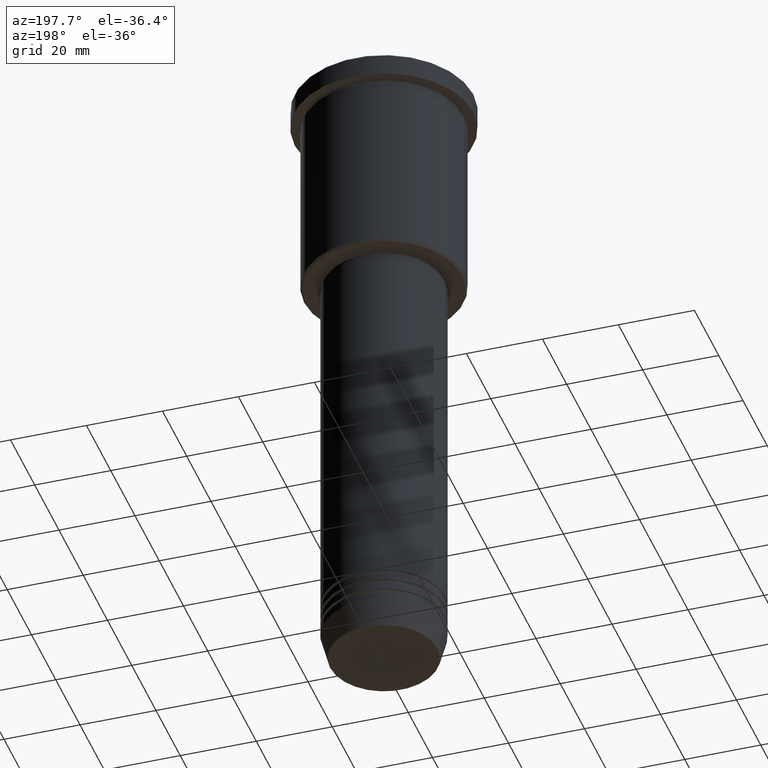
[diagram: clean part render]
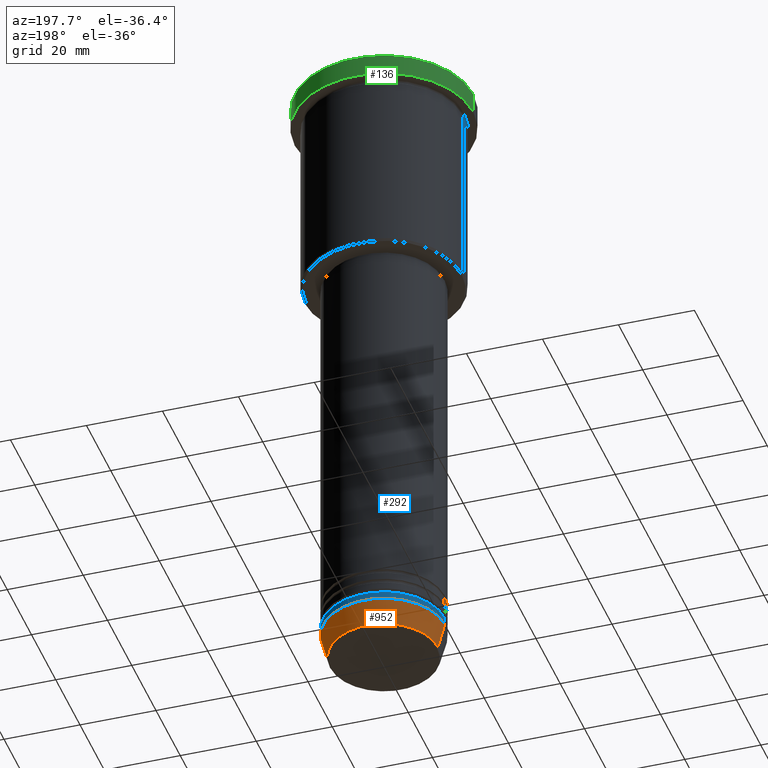
[diagram: same view with three faces highlighted in distinct colors, each labeled with its STEP entity id]
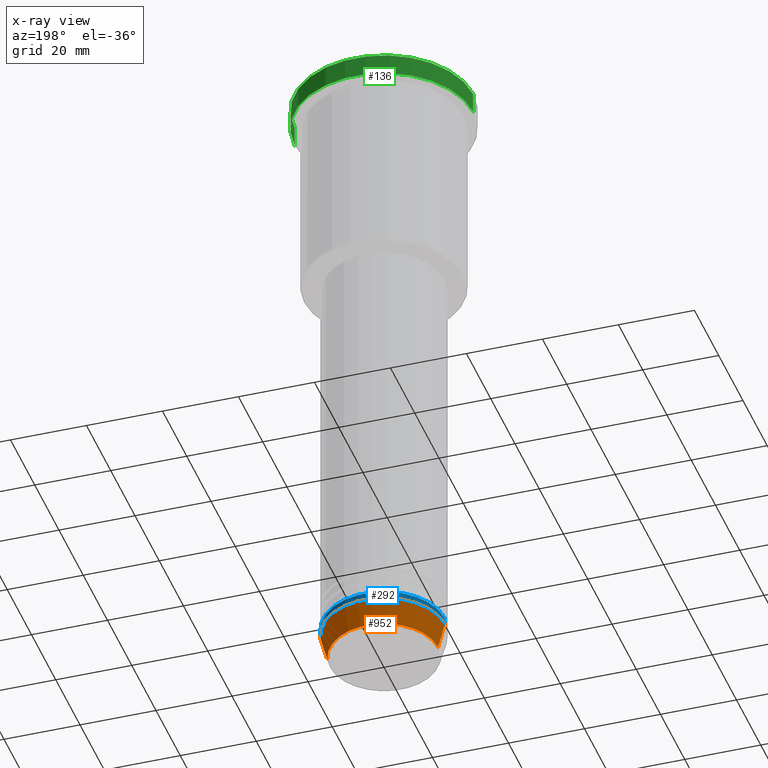
[diagram: x-ray of the same camera — body ghosted, the three highlighted faces saturated]
A machine part, auxiliary view with three faces highlighted in distinct colors.
The next image is the same camera in x-ray (body ghosted, the three faces saturated) — at least one of them is partly hidden behind the body in this view.
Their STEP definitions:

[orange] entity #952 — the highlighted conical surface has half-angle 15 deg.
#28 = CARTESIAN_POINT ( 'NONE',  ( 0.000000000000000000, 0.000000000000000000, -164.0000000000000000 ) ) ;
#51 = EDGE_CURVE ( 'NONE', #903, #446, #917, .T. ) ;
#67 = AXIS2_PLACEMENT_3D ( 'NONE', #28, #812, #179 ) ;
#134 = EDGE_CURVE ( 'NONE', #903, #942, #650, .T. ) ;
#179 = DIRECTION ( 'NONE',  ( 1.000000000000000000, 0.000000000000000000, 0.000000000000000000 ) ) ;
#195 = AXIS2_PLACEMENT_3D ( 'NONE', #768, #318, #232 ) ;
#213 = CARTESIAN_POINT ( 'NONE',  ( 14.22365507213719660, 0.000000000000000000, -170.6294095225512706 ) ) ;
#221 = VERTEX_POINT ( 'NONE', #927 ) ;
#232 = DIRECTION ( 'NONE',  ( 1.000000000000000000, 0.000000000000000000, 0.000000000000000000 ) ) ;
#235 = EDGE_LOOP ( 'NONE', ( #560, #390, #320, #322 ) ) ;
#318 = DIRECTION ( 'NONE',  ( -0.000000000000000000, -0.000000000000000000, 1.000000000000000000 ) ) ;
#320 = ORIENTED_EDGE ( 'NONE', *, *, #1176, .F. ) ;
#322 = ORIENTED_EDGE ( 'NONE', *, *, #51, .F. ) ;
#343 = DIRECTION ( 'NONE',  ( -0.2588190451025213501, 3.169619151431772337E-17, 0.9659258262890680902 ) ) ;
#389 = DIRECTION ( 'NONE',  ( -0.000000000000000000, -0.000000000000000000, 1.000000000000000000 ) ) ;
#390 = ORIENTED_EDGE ( 'NONE', *, *, #691, .T. ) ;
#446 = VERTEX_POINT ( 'NONE', #845 ) ;
#489 = CARTESIAN_POINT ( 'NONE',  ( 0.000000000000000000, 0.000000000000000000, -170.6294095225512706 ) ) ;
#515 = LINE ( 'NONE', #790, #818 ) ;
#560 = ORIENTED_EDGE ( 'NONE', *, *, #134, .T. ) ;
#567 = FACE_OUTER_BOUND ( 'NONE', #235, .T. ) ;
#574 = CIRCLE ( 'NONE', #67, 16.00000000000000000 ) ;
#650 = CIRCLE ( 'NONE', #671, 14.22365507213719660 ) ;
#671 = AXIS2_PLACEMENT_3D ( 'NONE', #489, #389, #745 ) ;
#691 = EDGE_CURVE ( 'NONE', #942, #221, #515, .T. ) ;
#745 = DIRECTION ( 'NONE',  ( 1.000000000000000000, 0.000000000000000000, 0.000000000000000000 ) ) ;
#768 = CARTESIAN_POINT ( 'NONE',  ( 0.000000000000000000, 0.000000000000000000, -164.0000000000000000 ) ) ;
#787 = CONICAL_SURFACE ( 'NONE', #195, 16.00000000000000000, 0.2617993877991500740 ) ;
#790 = CARTESIAN_POINT ( 'NONE',  ( -16.00000000000000000, 1.959434878635765131E-15, -164.0000000000000000 ) ) ;
#812 = DIRECTION ( 'NONE',  ( -0.000000000000000000, -0.000000000000000000, 1.000000000000000000 ) ) ;
#818 = VECTOR ( 'NONE', #343, 1000.000000000000000 ) ;
#845 = CARTESIAN_POINT ( 'NONE',  ( 16.00000000000000000, 0.000000000000000000, -164.0000000000000000 ) ) ;
#903 = VERTEX_POINT ( 'NONE', #213 ) ;
#917 = LINE ( 'NONE', #1003, #1011 ) ;
#924 = DIRECTION ( 'NONE',  ( 0.2588190451025213501, 0.000000000000000000, 0.9659258262890680902 ) ) ;
#927 = CARTESIAN_POINT ( 'NONE',  ( -16.00000000000000000, 1.959434878635765131E-15, -164.0000000000000000 ) ) ;
#942 = VERTEX_POINT ( 'NONE', #951 ) ;
#951 = CARTESIAN_POINT ( 'NONE',  ( -14.22365507213719660, 1.850665122131324126E-15, -170.6294095225512706 ) ) ;
#952 = ADVANCED_FACE ( 'NONE', ( #567 ), #787, .T. ) ;
#1003 = CARTESIAN_POINT ( 'NONE',  ( 16.00000000000000000, 0.000000000000000000, -164.0000000000000000 ) ) ;
#1011 = VECTOR ( 'NONE', #924, 1000.000000000000000 ) ;
#1176 = EDGE_CURVE ( 'NONE', #446, #221, #574, .T. ) ;

[blue] entity #292 — the highlighted cylindrical surface (partial cylindrical patch) has radius 16 mm, axis along (-0, -0, 1).
#16 = EDGE_LOOP ( 'NONE', ( #474, #30, #887, #188 ) ) ;
#22 = VERTEX_POINT ( 'NONE', #972 ) ;
#28 = CARTESIAN_POINT ( 'NONE',  ( 0.000000000000000000, 0.000000000000000000, -164.0000000000000000 ) ) ;
#30 = ORIENTED_EDGE ( 'NONE', *, *, #1174, .T. ) ;
#63 = EDGE_CURVE ( 'NONE', #22, #373, #1173, .T. ) ;
#67 = AXIS2_PLACEMENT_3D ( 'NONE', #28, #812, #179 ) ;
#92 = EDGE_CURVE ( 'NONE', #446, #22, #439, .T. ) ;
#131 = DIRECTION ( 'NONE',  ( -0.000000000000000000, -0.000000000000000000, 1.000000000000000000 ) ) ;
#160 = DIRECTION ( 'NONE',  ( 1.000000000000000000, 0.000000000000000000, 0.000000000000000000 ) ) ;
#179 = DIRECTION ( 'NONE',  ( 1.000000000000000000, 0.000000000000000000, 0.000000000000000000 ) ) ;
#188 = ORIENTED_EDGE ( 'NONE', *, *, #92, .F. ) ;
#197 = DIRECTION ( 'NONE',  ( -0.000000000000000000, -0.000000000000000000, 1.000000000000000000 ) ) ;
#208 = DIRECTION ( 'NONE',  ( -0.000000000000000000, -0.000000000000000000, 1.000000000000000000 ) ) ;
#216 = CARTESIAN_POINT ( 'NONE',  ( 0.000000000000000000, 0.000000000000000000, -162.0000000000000000 ) ) ;
#221 = VERTEX_POINT ( 'NONE', #927 ) ;
#230 = AXIS2_PLACEMENT_3D ( 'NONE', #1097, #197, #305 ) ;
#292 = ADVANCED_FACE ( 'NONE', ( #470 ), #814, .T. ) ;
#305 = DIRECTION ( 'NONE',  ( 1.000000000000000000, 0.000000000000000000, 0.000000000000000000 ) ) ;
#314 = DIRECTION ( 'NONE',  ( -0.000000000000000000, -0.000000000000000000, 1.000000000000000000 ) ) ;
#373 = VERTEX_POINT ( 'NONE', #916 ) ;
#439 = LINE ( 'NONE', #807, #558 ) ;
#446 = VERTEX_POINT ( 'NONE', #845 ) ;
#470 = FACE_OUTER_BOUND ( 'NONE', #16, .T. ) ;
#474 = ORIENTED_EDGE ( 'NONE', *, *, #1176, .T. ) ;
#558 = VECTOR ( 'NONE', #208, 1000.000000000000000 ) ;
#574 = CIRCLE ( 'NONE', #67, 16.00000000000000000 ) ;
#621 = LINE ( 'NONE', #1014, #914 ) ;
#807 = CARTESIAN_POINT ( 'NONE',  ( 16.00000000000000000, 0.000000000000000000, 0.000000000000000000 ) ) ;
#812 = DIRECTION ( 'NONE',  ( -0.000000000000000000, -0.000000000000000000, 1.000000000000000000 ) ) ;
#814 = CYLINDRICAL_SURFACE ( 'NONE', #230, 16.00000000000000000 ) ;
#845 = CARTESIAN_POINT ( 'NONE',  ( 16.00000000000000000, 0.000000000000000000, -164.0000000000000000 ) ) ;
#887 = ORIENTED_EDGE ( 'NONE', *, *, #63, .F. ) ;
#914 = VECTOR ( 'NONE', #314, 1000.000000000000000 ) ;
#916 = CARTESIAN_POINT ( 'NONE',  ( -16.00000000000000000, 1.959434878635765131E-15, -162.0000000000000000 ) ) ;
#927 = CARTESIAN_POINT ( 'NONE',  ( -16.00000000000000000, 1.959434878635765131E-15, -164.0000000000000000 ) ) ;
#972 = CARTESIAN_POINT ( 'NONE',  ( 16.00000000000000000, 0.000000000000000000, -162.0000000000000000 ) ) ;
#1014 = CARTESIAN_POINT ( 'NONE',  ( -16.00000000000000000, 1.959434878635765131E-15, 0.000000000000000000 ) ) ;
#1097 = CARTESIAN_POINT ( 'NONE',  ( 0.000000000000000000, 0.000000000000000000, 0.000000000000000000 ) ) ;
#1134 = AXIS2_PLACEMENT_3D ( 'NONE', #216, #131, #160 ) ;
#1173 = CIRCLE ( 'NONE', #1134, 16.00000000000000000 ) ;
#1174 = EDGE_CURVE ( 'NONE', #221, #373, #621, .T. ) ;
#1176 = EDGE_CURVE ( 'NONE', #446, #221, #574, .T. ) ;

[green] entity #136 — the highlighted cylindrical surface (partial cylindrical patch) has radius 23.5 mm, axis along (-0, -0, 1).
#6 = CIRCLE ( 'NONE', #741, 23.50000000000000000 ) ;
#60 = CARTESIAN_POINT ( 'NONE',  ( 23.50000000000000000, 0.000000000000000000, 0.000000000000000000 ) ) ;
#85 = VERTEX_POINT ( 'NONE', #463 ) ;
#93 = DIRECTION ( 'NONE',  ( -0.000000000000000000, -0.000000000000000000, 1.000000000000000000 ) ) ;
#109 = CARTESIAN_POINT ( 'NONE',  ( 23.50000000000000000, 0.000000000000000000, -0.4999999999999726885 ) ) ;
#125 = LINE ( 'NONE', #60, #1000 ) ;
#136 = ADVANCED_FACE ( 'NONE', ( #639 ), #1112, .T. ) ;
#153 = VERTEX_POINT ( 'NONE', #1150 ) ;
#158 = DIRECTION ( 'NONE',  ( 1.000000000000000000, 0.000000000000000000, 0.000000000000000000 ) ) ;
#225 = ORIENTED_EDGE ( 'NONE', *, *, #519, .T. ) ;
#231 = VERTEX_POINT ( 'NONE', #405 ) ;
#277 = AXIS2_PLACEMENT_3D ( 'NONE', #529, #615, #1179 ) ;
#341 = DIRECTION ( 'NONE',  ( 0.000000000000000000, 0.000000000000000000, -1.000000000000000000 ) ) ;
#353 = VERTEX_POINT ( 'NONE', #109 ) ;
#359 = ORIENTED_EDGE ( 'NONE', *, *, #805, .T. ) ;
#386 = VECTOR ( 'NONE', #93, 1000.000000000000000 ) ;
#405 = CARTESIAN_POINT ( 'NONE',  ( 23.50000000000000000, 0.000000000000000000, -5.999999999999994671 ) ) ;
#428 = AXIS2_PLACEMENT_3D ( 'NONE', #1035, #1129, #485 ) ;
#463 = CARTESIAN_POINT ( 'NONE',  ( -23.50000000000000000, 2.877919977996280320E-15, -5.999999999999994671 ) ) ;
#485 = DIRECTION ( 'NONE',  ( 1.000000000000000000, 0.000000000000000000, 0.000000000000000000 ) ) ;
#494 = CIRCLE ( 'NONE', #428, 23.50000000000000000 ) ;
#505 = EDGE_CURVE ( 'NONE', #231, #353, #125, .T. ) ;
#519 = EDGE_CURVE ( 'NONE', #231, #85, #494, .T. ) ;
#529 = CARTESIAN_POINT ( 'NONE',  ( 0.000000000000000000, 0.000000000000000000, 0.000000000000000000 ) ) ;
#615 = DIRECTION ( 'NONE',  ( -0.000000000000000000, -0.000000000000000000, 1.000000000000000000 ) ) ;
#627 = CARTESIAN_POINT ( 'NONE',  ( -23.50000000000000000, 2.877919977996280320E-15, 0.000000000000000000 ) ) ;
#639 = FACE_OUTER_BOUND ( 'NONE', #763, .T. ) ;
#708 = ORIENTED_EDGE ( 'NONE', *, *, #1005, .T. ) ;
#716 = LINE ( 'NONE', #627, #386 ) ;
#741 = AXIS2_PLACEMENT_3D ( 'NONE', #1166, #341, #158 ) ;
#763 = EDGE_LOOP ( 'NONE', ( #225, #359, #708, #1065 ) ) ;
#805 = EDGE_CURVE ( 'NONE', #85, #153, #716, .T. ) ;
#953 = DIRECTION ( 'NONE',  ( -0.000000000000000000, -0.000000000000000000, 1.000000000000000000 ) ) ;
#1000 = VECTOR ( 'NONE', #953, 1000.000000000000000 ) ;
#1005 = EDGE_CURVE ( 'NONE', #153, #353, #6, .T. ) ;
#1035 = CARTESIAN_POINT ( 'NONE',  ( 0.000000000000000000, 0.000000000000000000, -5.999999999999994671 ) ) ;
#1065 = ORIENTED_EDGE ( 'NONE', *, *, #505, .F. ) ;
#1112 = CYLINDRICAL_SURFACE ( 'NONE', #277, 23.50000000000000000 ) ;
#1129 = DIRECTION ( 'NONE',  ( -0.000000000000000000, -0.000000000000000000, 1.000000000000000000 ) ) ;
#1150 = CARTESIAN_POINT ( 'NONE',  ( -23.50000000000000000, 2.877919977996280320E-15, -0.4999999999999726885 ) ) ;
#1166 = CARTESIAN_POINT ( 'NONE',  ( 0.000000000000000000, 0.000000000000000000, -0.4999999999999726885 ) ) ;
#1179 = DIRECTION ( 'NONE',  ( 1.000000000000000000, 0.000000000000000000, 0.000000000000000000 ) ) ;